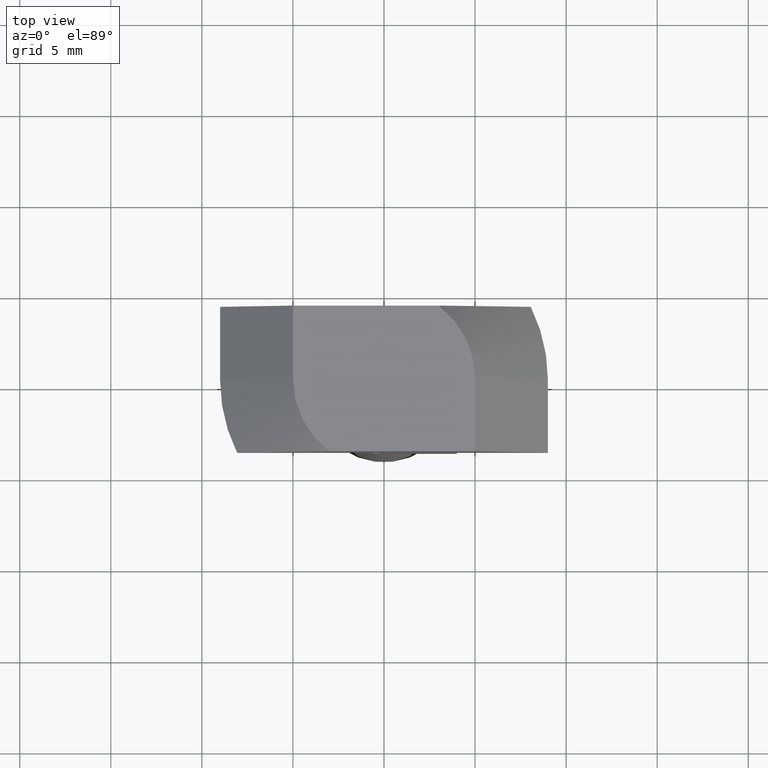
[diagram: clean part render]
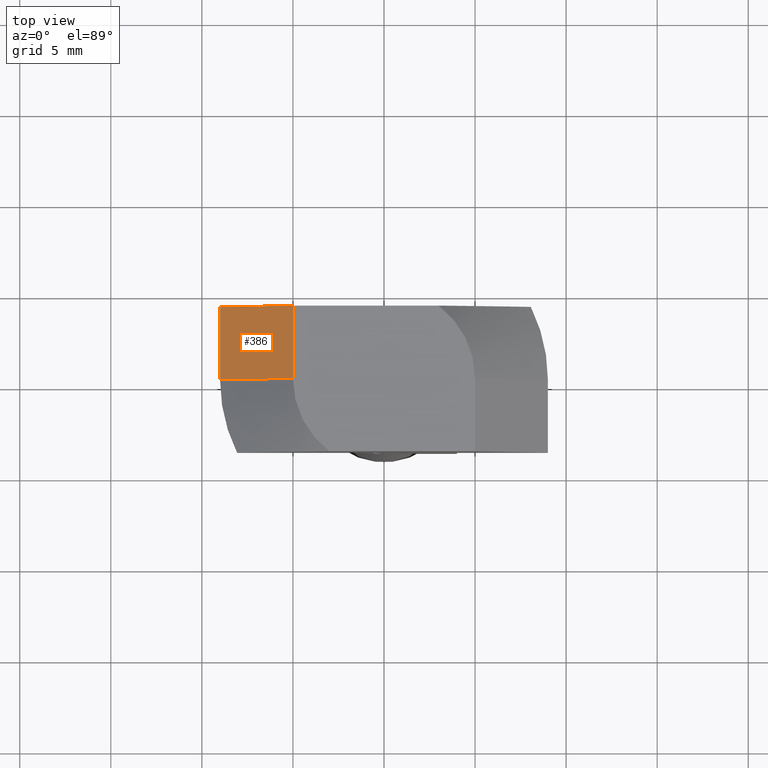
[diagram: same view with one face highlighted and labeled with its STEP entity id]
A machine part, top view. The second image highlights one B-rep face of the part: STEP entity #386.
In plain terms, the highlighted planar face has unit normal (-0.7071, 0, 0.7071).
Its self-contained STEP definition (entity closure, byte-faithful):
#40=LINE('',#634,#74);
#45=LINE('',#645,#79);
#47=LINE('',#649,#81);
#48=LINE('',#650,#82);
#74=VECTOR('',#517,5.65685424949238);
#79=VECTOR('',#528,4.);
#81=VECTOR('',#532,4.);
#82=VECTOR('',#533,5.65685424949238);
#94=PLANE('',#426);
#128=FACE_OUTER_BOUND('',#156,.T.);
#156=EDGE_LOOP('',(#333,#334,#335,#336));
#203=VERTEX_POINT('',#624);
#205=VERTEX_POINT('',#632);
#208=VERTEX_POINT('',#644);
#209=VERTEX_POINT('',#648);
#250=EDGE_CURVE('',#205,#203,#40,.T.);
#255=EDGE_CURVE('',#208,#203,#45,.T.);
#257=EDGE_CURVE('',#209,#205,#47,.T.);
#258=EDGE_CURVE('',#208,#209,#48,.T.);
#333=ORIENTED_EDGE('',*,*,#250,.F.);
#334=ORIENTED_EDGE('',*,*,#257,.F.);
#335=ORIENTED_EDGE('',*,*,#258,.F.);
#336=ORIENTED_EDGE('',*,*,#255,.T.);
#386=ADVANCED_FACE('',(#128),#94,.T.);
#426=AXIS2_PLACEMENT_3D('',#647,#530,#531);
#517=DIRECTION('',(-0.707106781186547,0.,-0.707106781186547));
#528=DIRECTION('',(0.,-1.,0.));
#530=DIRECTION('center_axis',(-0.707106781186548,0.,0.707106781186548));
#531=DIRECTION('ref_axis',(0.707106781186548,0.,0.707106781186548));
#532=DIRECTION('',(0.,-1.,0.));
#533=DIRECTION('',(0.707106781186548,0.,0.707106781186548));
#624=CARTESIAN_POINT('',(-9.,0.,-4.));
#632=CARTESIAN_POINT('',(-5.,0.,0.));
#634=CARTESIAN_POINT('',(-7.,0.,-2.));
#644=CARTESIAN_POINT('',(-9.,4.,-4.));
#645=CARTESIAN_POINT('',(-9.,0.,-4.));
#647=CARTESIAN_POINT('Origin',(-9.,0.,-4.));
#648=CARTESIAN_POINT('',(-5.,4.,0.));
#649=CARTESIAN_POINT('',(-5.,0.,4.00551059515339E-16));
#650=CARTESIAN_POINT('',(-5.,4.,4.00551059515339E-16));